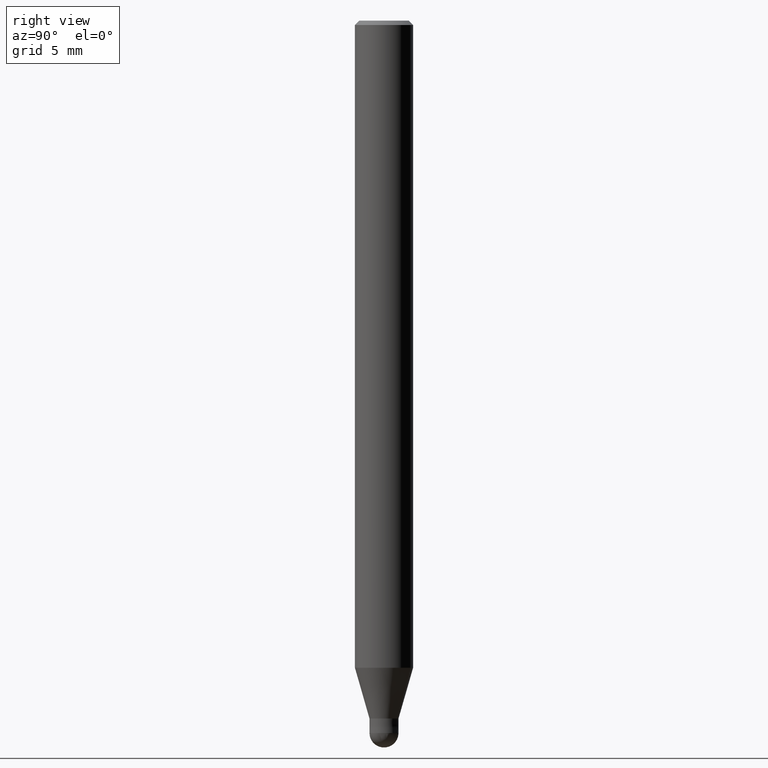
[diagram: clean part render]
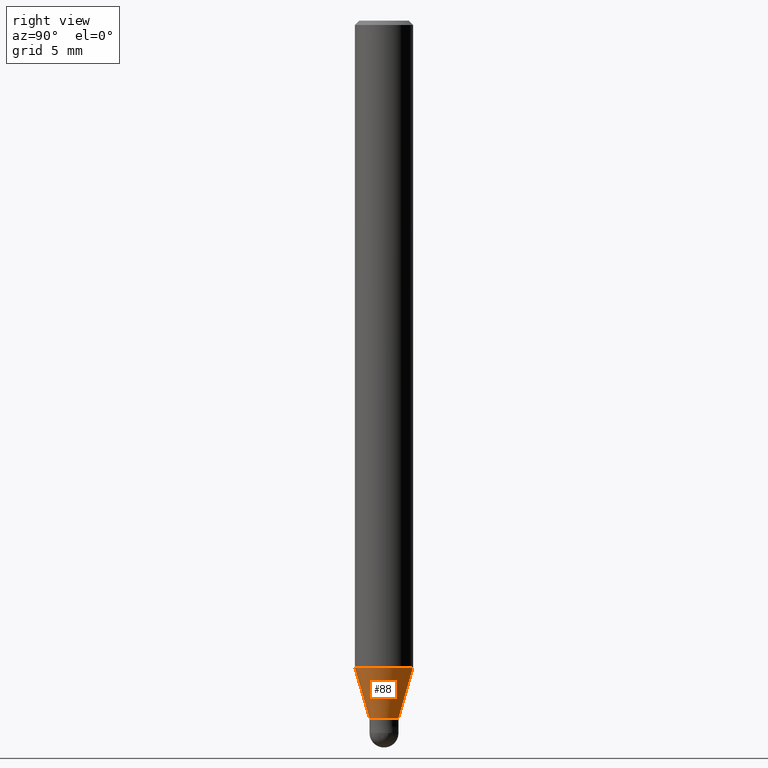
[diagram: same view with one face highlighted and labeled with its STEP entity id]
A machine part, right view. The second image highlights one B-rep face of the part: STEP entity #88.
In plain terms, the highlighted conical surface has half-angle 16.002 deg.
Its self-contained STEP definition (entity closure, byte-faithful):
#88=ADVANCED_FACE('',(#214),#215,.T.);
#104=VERTEX_POINT('',#231);
#114=VERTEX_POINT('',#242);
#122=EDGE_CURVE('',#154,#136,#251,.T.);
#134=EDGE_CURVE('',#104,#114,#265,.T.);
#136=VERTEX_POINT('',#267);
#140=EDGE_CURVE('',#114,#136,#272,.T.);
#154=VERTEX_POINT('',#288);
#186=EDGE_CURVE('',#154,#104,#326,.T.);
#214=FACE_OUTER_BOUND('',#346,.T.);
#215=CONICAL_SURFACE('',#347,1.49995,0.279284171542493);
#231=CARTESIAN_POINT('',(0.0,0.99995,-48.0));
#242=CARTESIAN_POINT('',(1.22454512350469E-016,-0.99995,-48.0));
#251=CIRCLE('',#396,1.99995);
#265=CIRCLE('',#413,0.99995);
#267=CARTESIAN_POINT('',(2.44915147732706E-016,-1.99995,-44.513));
#272=LINE('',#421,#422);
#288=CARTESIAN_POINT('',(0.0,1.99995,-44.513));
#326=LINE('',#485,#486);
#346=EDGE_LOOP('',(#502,#503,#504,#505));
#347=AXIS2_PLACEMENT_3D('',#506,#507,#508);
#396=AXIS2_PLACEMENT_3D('',#538,#539,#540);
#413=AXIS2_PLACEMENT_3D('',#561,#562,#563);
#421=CARTESIAN_POINT('',(1.83684830041587E-016,-1.49995,-46.2565));
#422=VECTOR('',#572,1.0);
#485=CARTESIAN_POINT('',(-1.83684830041587E-016,1.49995,-46.2565));
#486=VECTOR('',#646,1.0);
#502=ORIENTED_EDGE('',*,*,#186,.F.);
#503=ORIENTED_EDGE('',*,*,#122,.T.);
#504=ORIENTED_EDGE('',*,*,#140,.F.);
#505=ORIENTED_EDGE('',*,*,#134,.F.);
#506=CARTESIAN_POINT('',(0.0,0.0,-46.2565));
#507=DIRECTION('',(-0.0,-0.0,1.0));
#508=DIRECTION('',(0.0,1.0,0.0));
#538=CARTESIAN_POINT('',(0.0,0.0,-44.513));
#539=DIRECTION('',(0.0,0.0,-1.0));
#540=DIRECTION('',(0.0,1.0,0.0));
#561=CARTESIAN_POINT('',(0.0,0.0,-48.0));
#562=DIRECTION('',(0.0,0.0,-1.0));
#563=DIRECTION('',(0.0,1.0,0.0));
#572=DIRECTION('',(3.3758432755158E-017,-0.275667626987133,0.961253015304131));
#646=DIRECTION('',(3.3758432755158E-017,-0.275667626987133,-0.961253015304131));